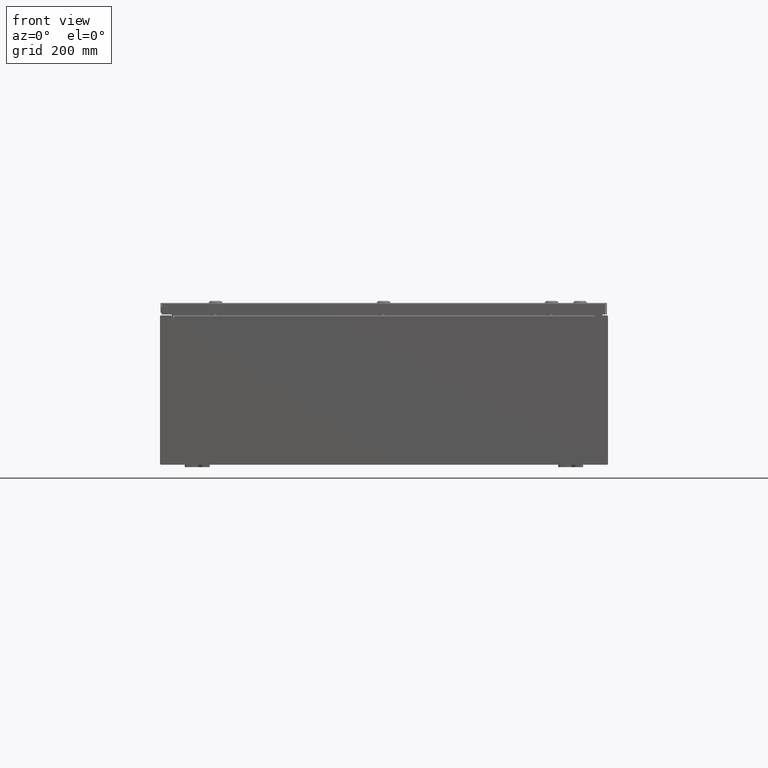
[diagram: clean part render]
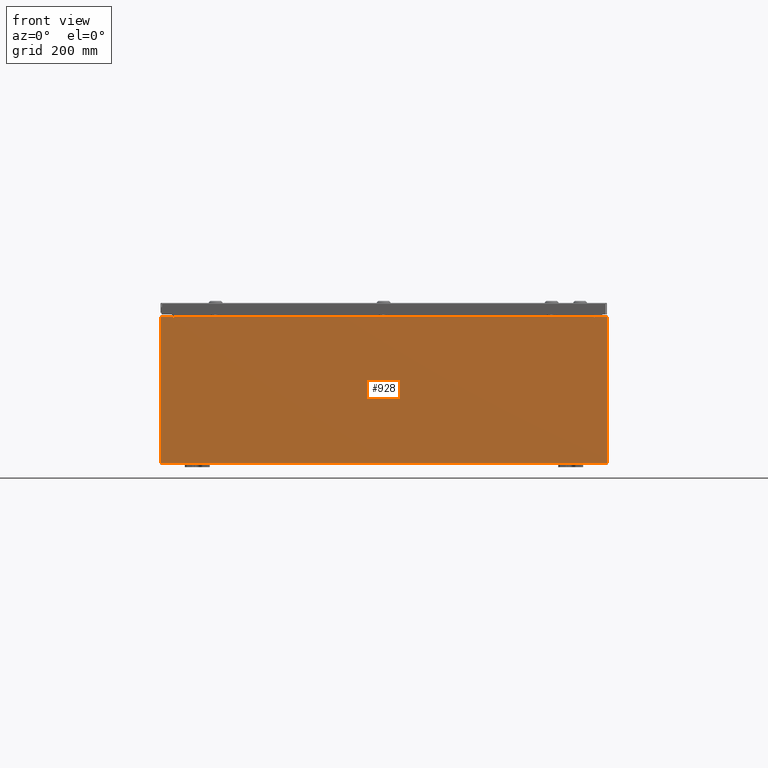
[diagram: same view with one face highlighted and labeled with its STEP entity id]
A machine part, front view. The second image highlights one B-rep face of the part: STEP entity #928.
In plain terms, the highlighted planar face has unit normal (-0, 1, -0).
Its self-contained STEP definition (entity closure, byte-faithful):
#928 = ADVANCED_FACE ( 'NONE', ( #23003 ), #4132, .F. ) ;
#1122 = CARTESIAN_POINT ( 'NONE',  ( 16.88720000000000000, 0.0000000000000000000, 5.874949999999999200 ) ) ;
#1904 = CARTESIAN_POINT ( 'NONE',  ( -16.92454999999998900, 0.0000000000000000000, 5.874949999999999200 ) ) ;
#2358 = VECTOR ( 'NONE', #15122, 39.37007874015748100 ) ;
#4132 = PLANE ( 'NONE',  #24376 ) ;
#4603 = VECTOR ( 'NONE', #67029, 39.37007874015748100 ) ;
#4634 = CARTESIAN_POINT ( 'NONE',  ( -17.92529999999999600, 0.0000000000000000000, -5.925300000000000000 ) ) ;
#4819 = CARTESIAN_POINT ( 'NONE',  ( 17.92530000000000400, 0.0000000000000000000, -5.925300000000000000 ) ) ;
#5881 = AXIS2_PLACEMENT_3D ( 'NONE', #25741, #62798, #31044 ) ;
#6693 = ORIENTED_EDGE ( 'NONE', *, *, #14999, .T. ) ;
#7953 = ORIENTED_EDGE ( 'NONE', *, *, #18572, .T. ) ;
#8297 = ORIENTED_EDGE ( 'NONE', *, *, #18642, .F. ) ;
#8468 = CARTESIAN_POINT ( 'NONE',  ( 16.92455000000000400, 0.0000000000000000000, 5.925300000000000000 ) ) ;
#9049 = EDGE_CURVE ( 'NONE', #60393, #42643, #15316, .T. ) ;
#11774 = VERTEX_POINT ( 'NONE', #42890 ) ;
#13115 = LINE ( 'NONE', #68580, #41271 ) ;
#13575 = ORIENTED_EDGE ( 'NONE', *, *, #9049, .F. ) ;
#14676 = DIRECTION ( 'NONE',  ( 1.000000000000000000, 0.0000000000000000000, 0.0000000000000000000 ) ) ;
#14687 = ORIENTED_EDGE ( 'NONE', *, *, #23654, .F. ) ;
#14697 = VERTEX_POINT ( 'NONE', #4634 ) ;
#14716 = DIRECTION ( 'NONE',  ( -0.0000000000000000000, 1.000000000000000000, -0.0000000000000000000 ) ) ;
#14791 = LINE ( 'NONE', #46815, #2358 ) ;
#14980 = VECTOR ( 'NONE', #48709, 39.37007874015748100 ) ;
#14999 = EDGE_CURVE ( 'NONE', #17905, #56568, #63101, .T. ) ;
#15122 = DIRECTION ( 'NONE',  ( 0.0000000000000000000, 0.0000000000000000000, 1.000000000000000000 ) ) ;
#15217 = LINE ( 'NONE', #46371, #29308 ) ;
#15304 = VERTEX_POINT ( 'NONE', #67576 ) ;
#15316 = CIRCLE ( 'NONE', #5881, 0.01867499999999949400 ) ;
#15715 = EDGE_CURVE ( 'NONE', #15843, #17905, #57213, .T. ) ;
#15843 = VERTEX_POINT ( 'NONE', #8468 ) ;
#17304 = CARTESIAN_POINT ( 'NONE',  ( -17.92529999999999600, 0.0000000000000000000, 5.925299999999999100 ) ) ;
#17352 = EDGE_CURVE ( 'NONE', #42643, #22601, #13115, .T. ) ;
#17905 = VERTEX_POINT ( 'NONE', #23269 ) ;
#18572 = EDGE_CURVE ( 'NONE', #61876, #22601, #49584, .T. ) ;
#18642 = EDGE_CURVE ( 'NONE', #64847, #20760, #14791, .T. ) ;
#18688 = LINE ( 'NONE', #61668, #4603 ) ;
#19848 = CARTESIAN_POINT ( 'NONE',  ( -16.88719999999998900, 3.756290991288361700E-016, 5.912299999999999200 ) ) ;
#20760 = VERTEX_POINT ( 'NONE', #65273 ) ;
#22006 = DIRECTION ( 'NONE',  ( 0.0000000000000000000, -1.000000000000000000, 0.0000000000000000000 ) ) ;
#22601 = VERTEX_POINT ( 'NONE', #30814 ) ;
#22674 = CARTESIAN_POINT ( 'NONE',  ( 17.92530000000000400, 0.0000000000000000000, 5.925300000000000000 ) ) ;
#23003 = FACE_OUTER_BOUND ( 'NONE', #30298, .T. ) ;
#23269 = CARTESIAN_POINT ( 'NONE',  ( 17.92530000000000400, 0.0000000000000000000, 5.925300000000000000 ) ) ;
#23389 = DIRECTION ( 'NONE',  ( 0.0000000000000000000, -0.0000000000000000000, -1.000000000000000000 ) ) ;
#23654 = EDGE_CURVE ( 'NONE', #15304, #64847, #40255, .T. ) ;
#23969 = DIRECTION ( 'NONE',  ( -8.681145560799821800E-014, 0.0000000000000000000, -1.000000000000000000 ) ) ;
#24376 = AXIS2_PLACEMENT_3D ( 'NONE', #37731, #22006, #23389 ) ;
#24442 = CARTESIAN_POINT ( 'NONE',  ( 16.92455000000000000, 0.0000000000000000000, 5.874949999999999200 ) ) ;
#25285 = EDGE_CURVE ( 'NONE', #11774, #20760, #31033, .T. ) ;
#25741 = CARTESIAN_POINT ( 'NONE',  ( 16.90587500000000200, 0.0000000000000000000, 5.874949999999999200 ) ) ;
#26680 = ORIENTED_EDGE ( 'NONE', *, *, #51712, .F. ) ;
#29308 = VECTOR ( 'NONE', #62408, 39.37007874015748100 ) ;
#30086 = ORIENTED_EDGE ( 'NONE', *, *, #15715, .T. ) ;
#30298 = EDGE_LOOP ( 'NONE', ( #8297, #14687, #26680, #7953, #55291, #13575, #38422, #30086, #6693, #53822, #63716, #51859 ) ) ;
#30439 = EDGE_CURVE ( 'NONE', #15843, #60393, #47544, .T. ) ;
#30814 = CARTESIAN_POINT ( 'NONE',  ( 16.88720000000000000, 0.0000000000000000000, 5.912299999999999200 ) ) ;
#31033 = LINE ( 'NONE', #17304, #34335 ) ;
#31044 = DIRECTION ( 'NONE',  ( 0.0000000000000000000, 0.0000000000000000000, -1.000000000000000000 ) ) ;
#31245 = EDGE_CURVE ( 'NONE', #14697, #11774, #64954, .T. ) ;
#33480 = VECTOR ( 'NONE', #23969, 39.37007874015748100 ) ;
#34335 = VECTOR ( 'NONE', #59678, 39.37007874015748100 ) ;
#34886 = VECTOR ( 'NONE', #59705, 39.37007874015748100 ) ;
#37731 = CARTESIAN_POINT ( 'NONE',  ( 0.0000000000000000000, 0.0000000000000000000, 0.0000000000000000000 ) ) ;
#38422 = ORIENTED_EDGE ( 'NONE', *, *, #30439, .F. ) ;
#40126 = CARTESIAN_POINT ( 'NONE',  ( 16.92454999999949200, -0.0000000000000000000, -1.469244821010302200E-012 ) ) ;
#40255 = CIRCLE ( 'NONE', #63196, 0.01867499999999949400 ) ;
#41271 = VECTOR ( 'NONE', #63229, 39.37007874015748100 ) ;
#42643 = VERTEX_POINT ( 'NONE', #1122 ) ;
#42890 = CARTESIAN_POINT ( 'NONE',  ( -17.92529999999999600, 0.0000000000000000000, 5.925299999999999100 ) ) ;
#42941 = VECTOR ( 'NONE', #14676, 39.37007874015748100 ) ;
#46371 = CARTESIAN_POINT ( 'NONE',  ( -17.92529999999999600, 0.0000000000000000000, -5.925300000000000000 ) ) ;
#46401 = CARTESIAN_POINT ( 'NONE',  ( -16.90587499999999100, 0.0000000000000000000, 5.874949999999999200 ) ) ;
#46815 = CARTESIAN_POINT ( 'NONE',  ( -16.92454999999998900, -0.0000000000000000000, 0.0000000000000000000 ) ) ;
#47472 = VECTOR ( 'NONE', #56267, 39.37007874015748100 ) ;
#47544 = LINE ( 'NONE', #40126, #33480 ) ;
#48709 = DIRECTION ( 'NONE',  ( 1.000000000000000000, 0.0000000000000000000, 3.048036009064577000E-017 ) ) ;
#49584 = LINE ( 'NONE', #57028, #42941 ) ;
#51712 = EDGE_CURVE ( 'NONE', #61876, #15304, #18688, .T. ) ;
#51718 = DIRECTION ( 'NONE',  ( 0.0000000000000000000, 0.0000000000000000000, -1.000000000000000000 ) ) ;
#51859 = ORIENTED_EDGE ( 'NONE', *, *, #25285, .T. ) ;
#53755 = EDGE_CURVE ( 'NONE', #56568, #14697, #15217, .T. ) ;
#53822 = ORIENTED_EDGE ( 'NONE', *, *, #53755, .T. ) ;
#54055 = CARTESIAN_POINT ( 'NONE',  ( -17.92529999999999600, 0.0000000000000000000, 5.925299999999999100 ) ) ;
#55291 = ORIENTED_EDGE ( 'NONE', *, *, #17352, .F. ) ;
#56267 = DIRECTION ( 'NONE',  ( -0.0000000000000000000, -0.0000000000000000000, 1.000000000000000000 ) ) ;
#56568 = VERTEX_POINT ( 'NONE', #4819 ) ;
#57028 = CARTESIAN_POINT ( 'NONE',  ( -16.88719999999999600, 3.756290991288361700E-016, 5.912299999999999200 ) ) ;
#57213 = LINE ( 'NONE', #54055, #14980 ) ;
#59678 = DIRECTION ( 'NONE',  ( 1.000000000000000000, 0.0000000000000000000, 3.048036009064577000E-017 ) ) ;
#59705 = DIRECTION ( 'NONE',  ( 0.0000000000000000000, 0.0000000000000000000, -1.000000000000000000 ) ) ;
#60393 = VERTEX_POINT ( 'NONE', #24442 ) ;
#61388 = CARTESIAN_POINT ( 'NONE',  ( -17.92529999999999600, 0.0000000000000000000, 5.925299999999999100 ) ) ;
#61668 = CARTESIAN_POINT ( 'NONE',  ( -16.88719999999998900, -0.0000000000000000000, 0.0000000000000000000 ) ) ;
#61876 = VERTEX_POINT ( 'NONE', #19848 ) ;
#62408 = DIRECTION ( 'NONE',  ( -1.000000000000000000, -0.0000000000000000000, -0.0000000000000000000 ) ) ;
#62798 = DIRECTION ( 'NONE',  ( -0.0000000000000000000, 1.000000000000000000, -0.0000000000000000000 ) ) ;
#63101 = LINE ( 'NONE', #22674, #34886 ) ;
#63196 = AXIS2_PLACEMENT_3D ( 'NONE', #46401, #14716, #51718 ) ;
#63229 = DIRECTION ( 'NONE',  ( 0.0000000000000000000, 0.0000000000000000000, 1.000000000000000000 ) ) ;
#63716 = ORIENTED_EDGE ( 'NONE', *, *, #31245, .T. ) ;
#64847 = VERTEX_POINT ( 'NONE', #1904 ) ;
#64954 = LINE ( 'NONE', #61388, #47472 ) ;
#65273 = CARTESIAN_POINT ( 'NONE',  ( -16.92454999999998900, 0.0000000000000000000, 5.925299999999999100 ) ) ;
#67029 = DIRECTION ( 'NONE',  ( 0.0000000000000000000, 0.0000000000000000000, -1.000000000000000000 ) ) ;
#67576 = CARTESIAN_POINT ( 'NONE',  ( -16.88719999999998900, -0.0000000000000000000, 5.874949999999999200 ) ) ;
#68580 = CARTESIAN_POINT ( 'NONE',  ( 16.88720000000000000, 0.0000000000000000000, 0.0000000000000000000 ) ) ;